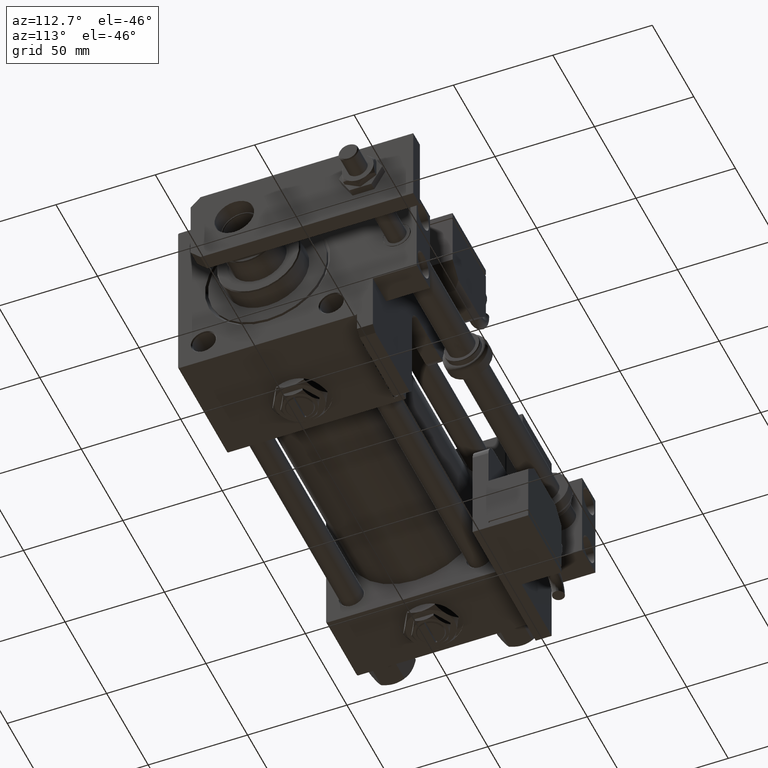
[diagram: clean part render]
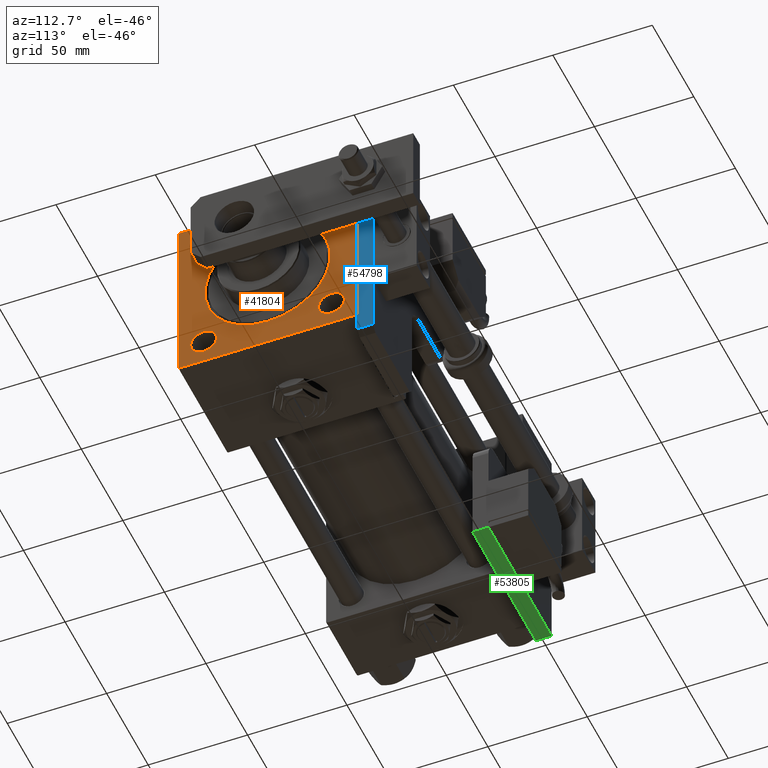
[diagram: same view with three faces highlighted in distinct colors, each labeled with its STEP entity id]
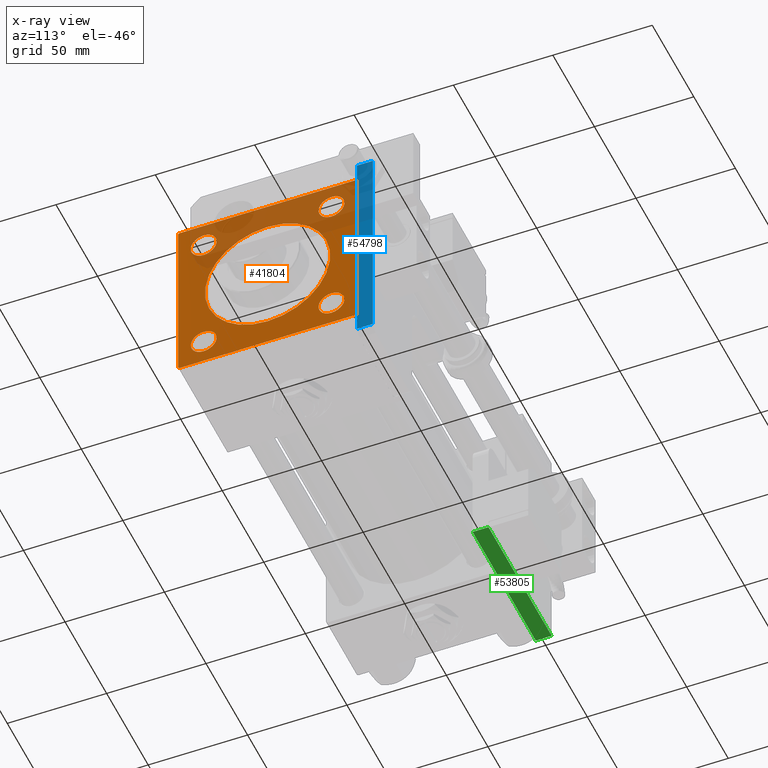
[diagram: x-ray of the same camera — body ghosted, the three highlighted faces saturated]
A machine part, auxiliary view with three faces highlighted in distinct colors.
The next image is the same camera in x-ray (body ghosted, the three faces saturated) — at least one of them is partly hidden behind the body in this view.
Their STEP definitions:

[orange] entity #41804 — the highlighted planar face has unit normal (-1, 0, 0).
#9 = EDGE_CURVE ( 'NONE', #36996, #1891, #56287, .T. ) ;
#38 = CARTESIAN_POINT ( 'NONE',  ( 215.0000000000000000, 32.14999999999999147, -38.64999999999997726 ) ) ;
#670 = CARTESIAN_POINT ( 'NONE',  ( 215.0000000000000000, 32.14999999999999147, -25.65000000000001990 ) ) ;
#802 = ORIENTED_EDGE ( 'NONE', *, *, #15114, .T. ) ;
#812 = PLANE ( 'NONE',  #39410 ) ;
#1070 = AXIS2_PLACEMENT_3D ( 'NONE', #15206, #45734, #54518 ) ;
#1101 = DIRECTION ( 'NONE',  ( -1.000000000000000000, 0.000000000000000000, -0.000000000000000000 ) ) ;
#1449 = VERTEX_POINT ( 'NONE', #20963 ) ;
#1710 = DIRECTION ( 'NONE',  ( 0.000000000000000000, 0.000000000000000000, 1.000000000000000000 ) ) ;
#1891 = VERTEX_POINT ( 'NONE', #6921 ) ;
#1951 = ORIENTED_EDGE ( 'NONE', *, *, #21061, .T. ) ;
#2167 = AXIS2_PLACEMENT_3D ( 'NONE', #29423, #42339, #50849 ) ;
#2315 = ORIENTED_EDGE ( 'NONE', *, *, #10657, .T. ) ;
#2739 = ORIENTED_EDGE ( 'NONE', *, *, #10255, .T. ) ;
#2992 = CARTESIAN_POINT ( 'NONE',  ( 215.0000000000000000, -44.49999999999997158, -45.00000000000000000 ) ) ;
#3070 = EDGE_CURVE ( 'NONE', #13785, #5379, #25503, .T. ) ;
#3170 = VECTOR ( 'NONE', #22317, 1000.000000000000000 ) ;
#3399 = EDGE_CURVE ( 'NONE', #1449, #32100, #10620, .T. ) ;
#3772 = VECTOR ( 'NONE', #5869, 1000.000000000000000 ) ;
#3805 = EDGE_LOOP ( 'NONE', ( #27112, #40538 ) ) ;
#4431 = DIRECTION ( 'NONE',  ( 0.000000000000000000, 0.000000000000000000, -1.000000000000000000 ) ) ;
#4579 = DIRECTION ( 'NONE',  ( -1.000000000000000000, 0.000000000000000000, -0.000000000000000000 ) ) ;
#4948 = EDGE_CURVE ( 'NONE', #41266, #19892, #15186, .T. ) ;
#5321 = DIRECTION ( 'NONE',  ( 0.000000000000000000, 0.000000000000000000, 1.000000000000000000 ) ) ;
#5379 = VERTEX_POINT ( 'NONE', #5979 ) ;
#5383 = DIRECTION ( 'NONE',  ( -0.000000000000000000, 0.7071067811865474617, 0.7071067811865474617 ) ) ;
#5525 = DIRECTION ( 'NONE',  ( -0.000000000000000000, 0.000000000000000000, 1.000000000000000000 ) ) ;
#5869 = DIRECTION ( 'NONE',  ( 0.000000000000000000, 0.000000000000000000, -1.000000000000000000 ) ) ;
#5967 = ORIENTED_EDGE ( 'NONE', *, *, #15136, .T. ) ;
#5979 = CARTESIAN_POINT ( 'NONE',  ( 215.0000000000000000, -32.14999999999999858, -38.64999999999997726 ) ) ;
#6131 = CARTESIAN_POINT ( 'NONE',  ( 215.0000000000000000, 3.857637417314158745E-15, 31.49999999999997158 ) ) ;
#6705 = ORIENTED_EDGE ( 'NONE', *, *, #36056, .T. ) ;
#6913 = CARTESIAN_POINT ( 'NONE',  ( 215.0000000000000000, 0.000000000000000000, -31.49999999999997158 ) ) ;
#6921 = CARTESIAN_POINT ( 'NONE',  ( 215.0000000000000000, -32.14999999999999858, 38.64999999999997726 ) ) ;
#7158 = DIRECTION ( 'NONE',  ( -1.000000000000000000, 0.000000000000000000, -0.000000000000000000 ) ) ;
#7222 = DIRECTION ( 'NONE',  ( 0.000000000000000000, 0.000000000000000000, 1.000000000000000000 ) ) ;
#8052 = CIRCLE ( 'NONE', #38018, 31.49999999999997158 ) ;
#8951 = ORIENTED_EDGE ( 'NONE', *, *, #43768, .T. ) ;
#8992 = CARTESIAN_POINT ( 'NONE',  ( 215.0000000000000000, 32.14999999999999147, 32.14999999999999858 ) ) ;
#9140 = DIRECTION ( 'NONE',  ( -1.000000000000000000, 0.000000000000000000, -0.000000000000000000 ) ) ;
#9697 = CIRCLE ( 'NONE', #34003, 6.499999999999977796 ) ;
#9922 = FACE_BOUND ( 'NONE', #26727, .T. ) ;
#10236 = DIRECTION ( 'NONE',  ( -1.000000000000000000, 0.000000000000000000, -0.000000000000000000 ) ) ;
#10255 = EDGE_CURVE ( 'NONE', #54383, #51793, #49021, .T. ) ;
#10620 = LINE ( 'NONE', #14457, #55542 ) ;
#10626 = CARTESIAN_POINT ( 'NONE',  ( 215.0000000000000000, 32.14999999999999147, 25.65000000000001990 ) ) ;
#10657 = EDGE_CURVE ( 'NONE', #19892, #41266, #12455, .T. ) ;
#10839 = VERTEX_POINT ( 'NONE', #38 ) ;
#11203 = AXIS2_PLACEMENT_3D ( 'NONE', #36091, #40210, #5321 ) ;
#11220 = DIRECTION ( 'NONE',  ( 0.000000000000000000, -0.7071067811865474617, 0.7071067811865474617 ) ) ;
#12455 = CIRCLE ( 'NONE', #2167, 6.499999999999977796 ) ;
#13241 = DIRECTION ( 'NONE',  ( 0.000000000000000000, 0.000000000000000000, 1.000000000000000000 ) ) ;
#13441 = FACE_BOUND ( 'NONE', #40336, .T. ) ;
#13785 = VERTEX_POINT ( 'NONE', #21224 ) ;
#14057 = ORIENTED_EDGE ( 'NONE', *, *, #56341, .T. ) ;
#14457 = CARTESIAN_POINT ( 'NONE',  ( 215.0000000000000000, 45.00000000000000000, -44.99999999999998579 ) ) ;
#14529 = VERTEX_POINT ( 'NONE', #57741 ) ;
#14765 = LINE ( 'NONE', #19147, #17484 ) ;
#14938 = VERTEX_POINT ( 'NONE', #17214 ) ;
#15114 = EDGE_CURVE ( 'NONE', #14938, #14529, #43488, .T. ) ;
#15136 = EDGE_CURVE ( 'NONE', #29002, #33556, #32188, .T. ) ;
#15186 = CIRCLE ( 'NONE', #47962, 6.499999999999977796 ) ;
#15206 = CARTESIAN_POINT ( 'NONE',  ( 215.0000000000000000, -32.14999999999999858, 32.14999999999999858 ) ) ;
#15228 = ORIENTED_EDGE ( 'NONE', *, *, #50247, .T. ) ;
#15662 = DIRECTION ( 'NONE',  ( -1.000000000000000000, 0.000000000000000000, -0.000000000000000000 ) ) ;
#16784 = CARTESIAN_POINT ( 'NONE',  ( 215.0000000000000000, 45.00000000000000000, 45.00000000000001421 ) ) ;
#17167 = EDGE_CURVE ( 'NONE', #52843, #14938, #33487, .T. ) ;
#17214 = CARTESIAN_POINT ( 'NONE',  ( 215.0000000000000000, 44.50000000000000000, 45.00000000000001421 ) ) ;
#17279 = DIRECTION ( 'NONE',  ( -1.000000000000000000, 0.000000000000000000, -0.000000000000000000 ) ) ;
#17484 = VECTOR ( 'NONE', #5383, 1000.000000000000114 ) ;
#17496 = DIRECTION ( 'NONE',  ( 0.000000000000000000, 0.000000000000000000, 1.000000000000000000 ) ) ;
#19147 = CARTESIAN_POINT ( 'NONE',  ( 215.0000000000000000, 45.00000000000000000, -44.49999999999998579 ) ) ;
#19798 = CIRCLE ( 'NONE', #27306, 6.499999999999977796 ) ;
#19892 = VERTEX_POINT ( 'NONE', #52656 ) ;
#20202 = CARTESIAN_POINT ( 'NONE',  ( 215.0000000000000000, 45.00000000000000000, 45.00000000000001421 ) ) ;
#20403 = CARTESIAN_POINT ( 'NONE',  ( 215.0000000000000000, -32.14999999999999858, 32.14999999999999858 ) ) ;
#20963 = CARTESIAN_POINT ( 'NONE',  ( 215.0000000000000000, 44.50000000000000000, -44.99999999999998579 ) ) ;
#21061 = EDGE_CURVE ( 'NONE', #1449, #46307, #14765, .T. ) ;
#21224 = CARTESIAN_POINT ( 'NONE',  ( 215.0000000000000000, -32.14999999999999858, -25.65000000000001990 ) ) ;
#21948 = VECTOR ( 'NONE', #11220, 1000.000000000000114 ) ;
#22317 = DIRECTION ( 'NONE',  ( 0.000000000000000000, -1.000000000000000000, -1.541976423090495387E-16 ) ) ;
#23165 = LINE ( 'NONE', #37519, #32768 ) ;
#23317 = EDGE_CURVE ( 'NONE', #51793, #32100, #52557, .T. ) ;
#25503 = CIRCLE ( 'NONE', #45222, 6.499999999999977796 ) ;
#26590 = ORIENTED_EDGE ( 'NONE', *, *, #23317, .T. ) ;
#26669 = ORIENTED_EDGE ( 'NONE', *, *, #40770, .F. ) ;
#26727 = EDGE_LOOP ( 'NONE', ( #5967, #14057 ) ) ;
#27112 = ORIENTED_EDGE ( 'NONE', *, *, #31046, .T. ) ;
#27306 = AXIS2_PLACEMENT_3D ( 'NONE', #20403, #39160, #7222 ) ;
#27585 = DIRECTION ( 'NONE',  ( -0.000000000000000000, -0.7071067811865474617, -0.7071067811865474617 ) ) ;
#28964 = ORIENTED_EDGE ( 'NONE', *, *, #29354, .T. ) ;
#28978 = CIRCLE ( 'NONE', #11203, 6.499999999999977796 ) ;
#29002 = VERTEX_POINT ( 'NONE', #6913 ) ;
#29066 = EDGE_LOOP ( 'NONE', ( #2739, #26590, #45400, #1951, #26669, #36554, #802, #6705 ) ) ;
#29354 = EDGE_CURVE ( 'NONE', #10839, #38626, #56106, .T. ) ;
#29423 = CARTESIAN_POINT ( 'NONE',  ( 215.0000000000000000, 32.14999999999999147, 32.14999999999999858 ) ) ;
#31046 = EDGE_CURVE ( 'NONE', #5379, #13785, #28978, .T. ) ;
#32100 = VERTEX_POINT ( 'NONE', #2992 ) ;
#32188 = CIRCLE ( 'NONE', #35937, 31.49999999999997158 ) ;
#32768 = VECTOR ( 'NONE', #27585, 1000.000000000000114 ) ;
#33405 = ORIENTED_EDGE ( 'NONE', *, *, #9, .T. ) ;
#33487 = LINE ( 'NONE', #51398, #21948 ) ;
#33526 = DIRECTION ( 'NONE',  ( 0.000000000000000000, 0.000000000000000000, 1.000000000000000000 ) ) ;
#33556 = VERTEX_POINT ( 'NONE', #6131 ) ;
#34003 = AXIS2_PLACEMENT_3D ( 'NONE', #46473, #15662, #33526 ) ;
#35150 = DIRECTION ( 'NONE',  ( 0.000000000000000000, 0.000000000000000000, 1.000000000000000000 ) ) ;
#35497 = AXIS2_PLACEMENT_3D ( 'NONE', #41907, #10236, #1710 ) ;
#35723 = ORIENTED_EDGE ( 'NONE', *, *, #4948, .T. ) ;
#35853 = VECTOR ( 'NONE', #4431, 1000.000000000000000 ) ;
#35937 = AXIS2_PLACEMENT_3D ( 'NONE', #49039, #9140, #13241 ) ;
#36056 = EDGE_CURVE ( 'NONE', #14529, #54383, #23165, .T. ) ;
#36091 = CARTESIAN_POINT ( 'NONE',  ( 215.0000000000000000, -32.14999999999999858, -32.14999999999999858 ) ) ;
#36464 = CARTESIAN_POINT ( 'NONE',  ( 215.0000000000000000, 45.00000000000000000, 44.50000000000001421 ) ) ;
#36554 = ORIENTED_EDGE ( 'NONE', *, *, #17167, .T. ) ;
#36996 = VERTEX_POINT ( 'NONE', #43722 ) ;
#37009 = DIRECTION ( 'NONE',  ( 0.000000000000000000, -1.000000000000000000, -1.541976423090495387E-16 ) ) ;
#37519 = CARTESIAN_POINT ( 'NONE',  ( 215.0000000000000000, -45.00000000000000000, 44.50000000000000000 ) ) ;
#38018 = AXIS2_PLACEMENT_3D ( 'NONE', #40728, #17279, #35150 ) ;
#38087 = LINE ( 'NONE', #20202, #3772 ) ;
#38626 = VERTEX_POINT ( 'NONE', #670 ) ;
#38790 = DIRECTION ( 'NONE',  ( 0.000000000000000000, 0.7071067811865474617, -0.7071067811865474617 ) ) ;
#39160 = DIRECTION ( 'NONE',  ( -1.000000000000000000, 0.000000000000000000, -0.000000000000000000 ) ) ;
#39410 = AXIS2_PLACEMENT_3D ( 'NONE', #54196, #1101, #5525 ) ;
#39841 = CARTESIAN_POINT ( 'NONE',  ( 215.0000000000000000, -45.00000000000000000, 44.50000000000000000 ) ) ;
#40210 = DIRECTION ( 'NONE',  ( -1.000000000000000000, 0.000000000000000000, -0.000000000000000000 ) ) ;
#40336 = EDGE_LOOP ( 'NONE', ( #28964, #15228 ) ) ;
#40414 = FACE_BOUND ( 'NONE', #53027, .T. ) ;
#40538 = ORIENTED_EDGE ( 'NONE', *, *, #3070, .T. ) ;
#40728 = CARTESIAN_POINT ( 'NONE',  ( 215.0000000000000000, 0.000000000000000000, 0.000000000000000000 ) ) ;
#40770 = EDGE_CURVE ( 'NONE', #52843, #46307, #38087, .T. ) ;
#41003 = FACE_BOUND ( 'NONE', #3805, .T. ) ;
#41266 = VERTEX_POINT ( 'NONE', #10626 ) ;
#41804 = ADVANCED_FACE ( 'NONE', ( #40414, #49235, #41003, #13441, #9922, #49808 ), #812, .F. ) ;
#41907 = CARTESIAN_POINT ( 'NONE',  ( 215.0000000000000000, 32.14999999999999147, -32.14999999999999858 ) ) ;
#42339 = DIRECTION ( 'NONE',  ( -1.000000000000000000, 0.000000000000000000, -0.000000000000000000 ) ) ;
#42356 = DIRECTION ( 'NONE',  ( 0.000000000000000000, 0.000000000000000000, 1.000000000000000000 ) ) ;
#42918 = CARTESIAN_POINT ( 'NONE',  ( 215.0000000000000000, -44.50000000000000000, -45.00000000000000000 ) ) ;
#43488 = LINE ( 'NONE', #16784, #3170 ) ;
#43722 = CARTESIAN_POINT ( 'NONE',  ( 215.0000000000000000, -32.14999999999999858, 25.65000000000001990 ) ) ;
#43768 = EDGE_CURVE ( 'NONE', #1891, #36996, #19798, .T. ) ;
#45222 = AXIS2_PLACEMENT_3D ( 'NONE', #56696, #7158, #42356 ) ;
#45400 = ORIENTED_EDGE ( 'NONE', *, *, #3399, .F. ) ;
#45734 = DIRECTION ( 'NONE',  ( -1.000000000000000000, 0.000000000000000000, -0.000000000000000000 ) ) ;
#46307 = VERTEX_POINT ( 'NONE', #49337 ) ;
#46473 = CARTESIAN_POINT ( 'NONE',  ( 215.0000000000000000, 32.14999999999999147, -32.14999999999999858 ) ) ;
#46594 = VECTOR ( 'NONE', #38790, 1000.000000000000114 ) ;
#47962 = AXIS2_PLACEMENT_3D ( 'NONE', #8992, #4579, #17496 ) ;
#49021 = LINE ( 'NONE', #53991, #35853 ) ;
#49039 = CARTESIAN_POINT ( 'NONE',  ( 215.0000000000000000, 0.000000000000000000, 0.000000000000000000 ) ) ;
#49235 = FACE_BOUND ( 'NONE', #53906, .T. ) ;
#49337 = CARTESIAN_POINT ( 'NONE',  ( 215.0000000000000000, 45.00000000000000000, -44.49999999999995737 ) ) ;
#49808 = FACE_OUTER_BOUND ( 'NONE', #29066, .T. ) ;
#50247 = EDGE_CURVE ( 'NONE', #38626, #10839, #9697, .T. ) ;
#50849 = DIRECTION ( 'NONE',  ( 0.000000000000000000, 0.000000000000000000, 1.000000000000000000 ) ) ;
#51398 = CARTESIAN_POINT ( 'NONE',  ( 215.0000000000000000, 44.50000000000000000, 45.00000000000001421 ) ) ;
#51793 = VERTEX_POINT ( 'NONE', #52063 ) ;
#52063 = CARTESIAN_POINT ( 'NONE',  ( 215.0000000000000000, -45.00000000000000000, -44.49999999999997158 ) ) ;
#52557 = LINE ( 'NONE', #42918, #46594 ) ;
#52656 = CARTESIAN_POINT ( 'NONE',  ( 215.0000000000000000, 32.14999999999999147, 38.64999999999997726 ) ) ;
#52843 = VERTEX_POINT ( 'NONE', #36464 ) ;
#53027 = EDGE_LOOP ( 'NONE', ( #35723, #2315 ) ) ;
#53906 = EDGE_LOOP ( 'NONE', ( #33405, #8951 ) ) ;
#53991 = CARTESIAN_POINT ( 'NONE',  ( 215.0000000000000000, -45.00000000000000000, 45.00000000000000000 ) ) ;
#54196 = CARTESIAN_POINT ( 'NONE',  ( 215.0000000000000000, 0.000000000000000000, 0.000000000000000000 ) ) ;
#54383 = VERTEX_POINT ( 'NONE', #39841 ) ;
#54518 = DIRECTION ( 'NONE',  ( 0.000000000000000000, 0.000000000000000000, 1.000000000000000000 ) ) ;
#55542 = VECTOR ( 'NONE', #37009, 1000.000000000000000 ) ;
#56106 = CIRCLE ( 'NONE', #35497, 6.499999999999977796 ) ;
#56287 = CIRCLE ( 'NONE', #1070, 6.499999999999977796 ) ;
#56341 = EDGE_CURVE ( 'NONE', #33556, #29002, #8052, .T. ) ;
#56696 = CARTESIAN_POINT ( 'NONE',  ( 215.0000000000000000, -32.14999999999999858, -32.14999999999999858 ) ) ;
#57741 = CARTESIAN_POINT ( 'NONE',  ( 215.0000000000000000, -44.49999999999997158, 45.00000000000000000 ) ) ;

[blue] entity #54798 — the highlighted planar face has unit normal (-1, 0, 0).
#2849 = VECTOR ( 'NONE', #29981, 1000.000000000000000 ) ;
#3714 = CARTESIAN_POINT ( 'NONE',  ( 2.999999999999975131, 0.000000000000000000, 8.000000000000000000 ) ) ;
#4447 = CARTESIAN_POINT ( 'NONE',  ( 0.000000000000000000, 0.000000000000000000, 0.000000000000000000 ) ) ;
#7438 = VERTEX_POINT ( 'NONE', #34737 ) ;
#7991 = LINE ( 'NONE', #44053, #2849 ) ;
#9134 = CARTESIAN_POINT ( 'NONE',  ( 2.999999999999975131, 0.000000000000000000, 0.000000000000000000 ) ) ;
#10717 = DIRECTION ( 'NONE',  ( 0.000000000000000000, 1.000000000000000000, 0.000000000000000000 ) ) ;
#11706 = VECTOR ( 'NONE', #55177, 1000.000000000000000 ) ;
#14434 = CARTESIAN_POINT ( 'NONE',  ( 0.000000000000000000, 0.000000000000000000, 8.000000000000000000 ) ) ;
#15004 = CARTESIAN_POINT ( 'NONE',  ( 111.9999999999999858, 0.000000000000000000, 8.000000000000000000 ) ) ;
#15128 = EDGE_CURVE ( 'NONE', #32315, #43229, #53432, .T. ) ;
#17509 = LINE ( 'NONE', #3714, #57531 ) ;
#17928 = DIRECTION ( 'NONE',  ( 1.000000000000000000, 0.000000000000000000, 0.000000000000000000 ) ) ;
#20073 = FACE_OUTER_BOUND ( 'NONE', #29722, .T. ) ;
#21874 = ORIENTED_EDGE ( 'NONE', *, *, #53125, .F. ) ;
#23788 = LINE ( 'NONE', #14434, #11706 ) ;
#24342 = ORIENTED_EDGE ( 'NONE', *, *, #33066, .T. ) ;
#29722 = EDGE_LOOP ( 'NONE', ( #37051, #24342, #21874, #48676 ) ) ;
#29981 = DIRECTION ( 'NONE',  ( 0.000000000000000000, 0.000000000000000000, 1.000000000000000000 ) ) ;
#31858 = DIRECTION ( 'NONE',  ( 0.000000000000000000, 0.000000000000000000, -1.000000000000000000 ) ) ;
#32315 = VERTEX_POINT ( 'NONE', #9134 ) ;
#33066 = EDGE_CURVE ( 'NONE', #43229, #53164, #7991, .T. ) ;
#34737 = CARTESIAN_POINT ( 'NONE',  ( 2.999999999999975131, 0.000000000000000000, 8.000000000000000000 ) ) ;
#35752 = CARTESIAN_POINT ( 'NONE',  ( 111.9999999999999858, 0.000000000000000000, 0.000000000000000000 ) ) ;
#37051 = ORIENTED_EDGE ( 'NONE', *, *, #15128, .T. ) ;
#37383 = PLANE ( 'NONE',  #41768 ) ;
#41768 = AXIS2_PLACEMENT_3D ( 'NONE', #55861, #10717, #55285 ) ;
#43229 = VERTEX_POINT ( 'NONE', #35752 ) ;
#43456 = VECTOR ( 'NONE', #17928, 1000.000000000000000 ) ;
#44053 = CARTESIAN_POINT ( 'NONE',  ( 111.9999999999999858, 0.000000000000000000, 8.000000000000000000 ) ) ;
#48676 = ORIENTED_EDGE ( 'NONE', *, *, #52443, .T. ) ;
#52443 = EDGE_CURVE ( 'NONE', #7438, #32315, #17509, .T. ) ;
#53125 = EDGE_CURVE ( 'NONE', #7438, #53164, #23788, .T. ) ;
#53164 = VERTEX_POINT ( 'NONE', #15004 ) ;
#53432 = LINE ( 'NONE', #4447, #43456 ) ;
#54798 = ADVANCED_FACE ( 'NONE', ( #20073 ), #37383, .F. ) ;
#55177 = DIRECTION ( 'NONE',  ( 1.000000000000000000, 0.000000000000000000, 0.000000000000000000 ) ) ;
#55285 = DIRECTION ( 'NONE',  ( 0.000000000000000000, -0.000000000000000000, 1.000000000000000000 ) ) ;
#55861 = CARTESIAN_POINT ( 'NONE',  ( 0.000000000000000000, 0.000000000000000000, 8.000000000000000000 ) ) ;
#57531 = VECTOR ( 'NONE', #31858, 1000.000000000000000 ) ;

[green] entity #53805 — the highlighted planar face has unit normal (0, 0, 1).
#46 = VECTOR ( 'NONE', #55712, 1000.000000000000000 ) ;
#213 = ORIENTED_EDGE ( 'NONE', *, *, #37100, .T. ) ;
#1299 = PLANE ( 'NONE',  #39833 ) ;
#2068 = DIRECTION ( 'NONE',  ( -0.000000000000000000, -0.000000000000000000, -1.000000000000000000 ) ) ;
#2666 = LINE ( 'NONE', #7647, #33077 ) ;
#4968 = VECTOR ( 'NONE', #2068, 1000.000000000000000 ) ;
#5727 = ORIENTED_EDGE ( 'NONE', *, *, #41620, .T. ) ;
#6447 = LINE ( 'NONE', #7026, #46 ) ;
#6898 = CARTESIAN_POINT ( 'NONE',  ( -76.00000000000004263, 0.000000000000000000, 8.000000000000000000 ) ) ;
#6900 = EDGE_CURVE ( 'NONE', #23854, #16450, #46672, .T. ) ;
#7026 = CARTESIAN_POINT ( 'NONE',  ( -76.00000000000004263, 0.000000000000000000, 8.000000000000000000 ) ) ;
#7647 = CARTESIAN_POINT ( 'NONE',  ( -76.00000000000004263, 0.000000000000000000, 8.000000000000000000 ) ) ;
#9301 = FACE_OUTER_BOUND ( 'NONE', #46116, .T. ) ;
#10480 = CARTESIAN_POINT ( 'NONE',  ( -76.00000000000004263, 0.000000000000000000, 0.000000000000000000 ) ) ;
#12885 = VERTEX_POINT ( 'NONE', #33756 ) ;
#14608 = DIRECTION ( 'NONE',  ( 1.000000000000000000, 0.000000000000000000, 0.000000000000000000 ) ) ;
#16450 = VERTEX_POINT ( 'NONE', #19914 ) ;
#19914 = CARTESIAN_POINT ( 'NONE',  ( 0.000000000000000000, 0.000000000000000000, 0.000000000000000000 ) ) ;
#22836 = CARTESIAN_POINT ( 'NONE',  ( 0.000000000000000000, 0.000000000000000000, 8.000000000000000000 ) ) ;
#23854 = VERTEX_POINT ( 'NONE', #22836 ) ;
#27180 = DIRECTION ( 'NONE',  ( 0.000000000000000000, 1.000000000000000000, 0.000000000000000000 ) ) ;
#28947 = VECTOR ( 'NONE', #14608, 1000.000000000000000 ) ;
#33077 = VECTOR ( 'NONE', #47549, 1000.000000000000000 ) ;
#33756 = CARTESIAN_POINT ( 'NONE',  ( -76.00000000000004263, 0.000000000000000000, 0.000000000000000000 ) ) ;
#35043 = VERTEX_POINT ( 'NONE', #6898 ) ;
#37066 = DIRECTION ( 'NONE',  ( 0.000000000000000000, -0.000000000000000000, 1.000000000000000000 ) ) ;
#37100 = EDGE_CURVE ( 'NONE', #12885, #16450, #45986, .T. ) ;
#39833 = AXIS2_PLACEMENT_3D ( 'NONE', #55256, #27180, #37066 ) ;
#41620 = EDGE_CURVE ( 'NONE', #35043, #12885, #6447, .T. ) ;
#41843 = ORIENTED_EDGE ( 'NONE', *, *, #47502, .F. ) ;
#42266 = CARTESIAN_POINT ( 'NONE',  ( 0.000000000000000000, 0.000000000000000000, 8.000000000000000000 ) ) ;
#45986 = LINE ( 'NONE', #10480, #28947 ) ;
#46116 = EDGE_LOOP ( 'NONE', ( #213, #50610, #41843, #5727 ) ) ;
#46672 = LINE ( 'NONE', #42266, #4968 ) ;
#47502 = EDGE_CURVE ( 'NONE', #35043, #23854, #2666, .T. ) ;
#47549 = DIRECTION ( 'NONE',  ( 1.000000000000000000, 0.000000000000000000, 0.000000000000000000 ) ) ;
#50610 = ORIENTED_EDGE ( 'NONE', *, *, #6900, .F. ) ;
#53805 = ADVANCED_FACE ( 'NONE', ( #9301 ), #1299, .F. ) ;
#55256 = CARTESIAN_POINT ( 'NONE',  ( -76.00000000000004263, 0.000000000000000000, 8.000000000000000000 ) ) ;
#55712 = DIRECTION ( 'NONE',  ( -0.000000000000000000, -0.000000000000000000, -1.000000000000000000 ) ) ;